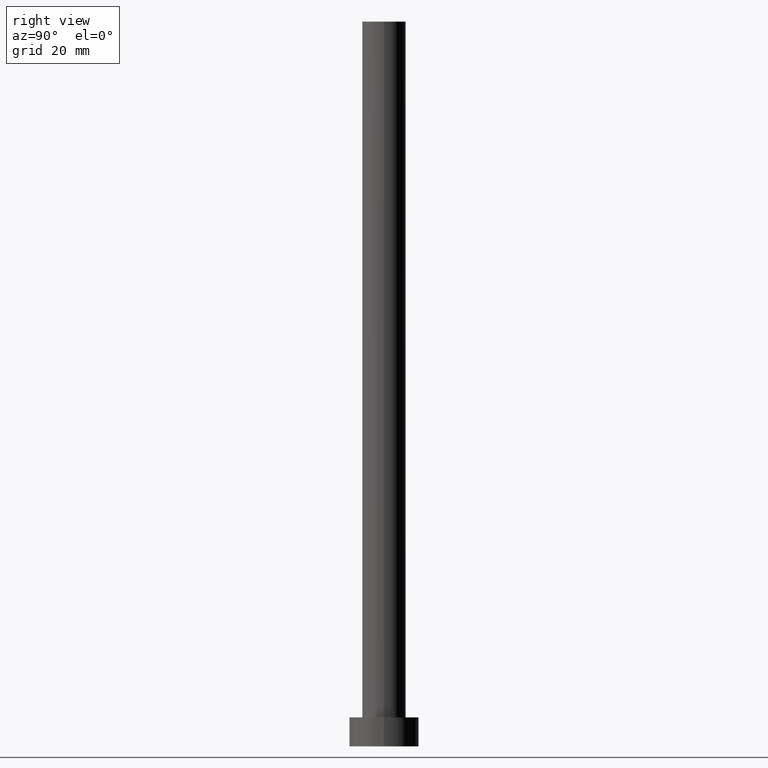
[diagram: clean part render]
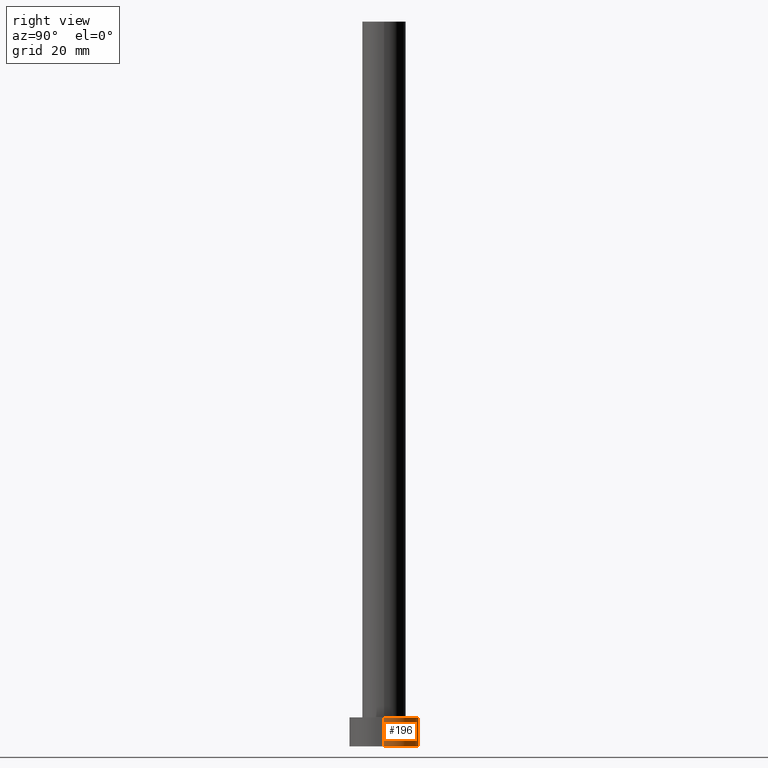
[diagram: same view with one face highlighted and labeled with its STEP entity id]
A machine part, right view. The second image highlights one B-rep face of the part: STEP entity #196.
In plain terms, the highlighted cylindrical surface (edge-blend (fillet) strip) has radius 6 mm, axis along (-0, -0, -1).
Its self-contained STEP definition (entity closure, byte-faithful):
#11 = CARTESIAN_POINT ( 'NONE',  ( 0.000000000000000000, 0.000000000000000000, 5.000000000000000000 ) ) ;
#13 = CARTESIAN_POINT ( 'NONE',  ( -6.000000000000000888, 0.000000000000000000, 5.000000000000000000 ) ) ;
#16 = CARTESIAN_POINT ( 'NONE',  ( -6.000000000000000888, 0.000000000000000000, 5.000000000000000000 ) ) ;
#19 = AXIS2_PLACEMENT_3D ( 'NONE', #157, #156, #122 ) ;
#33 = DIRECTION ( 'NONE',  ( -0.000000000000000000, -0.000000000000000000, -1.000000000000000000 ) ) ;
#34 = EDGE_CURVE ( 'NONE', #192, #238, #176, .T. ) ;
#46 = VERTEX_POINT ( 'NONE', #160 ) ;
#50 = CIRCLE ( 'NONE', #158, 6.000000000000000888 ) ;
#54 = EDGE_CURVE ( 'NONE', #46, #64, #50, .T. ) ;
#55 = ORIENTED_EDGE ( 'NONE', *, *, #34, .T. ) ;
#62 = CARTESIAN_POINT ( 'NONE',  ( -6.000000000000000888, 0.000000000000000000, 0.000000000000000000 ) ) ;
#64 = VERTEX_POINT ( 'NONE', #13 ) ;
#71 = AXIS2_PLACEMENT_3D ( 'NONE', #128, #230, #131 ) ;
#73 = ORIENTED_EDGE ( 'NONE', *, *, #54, .F. ) ;
#89 = ORIENTED_EDGE ( 'NONE', *, *, #226, .T. ) ;
#90 = EDGE_CURVE ( 'NONE', #64, #238, #225, .T. ) ;
#93 = DIRECTION ( 'NONE',  ( 0.000000000000000000, 0.000000000000000000, 1.000000000000000000 ) ) ;
#101 = CYLINDRICAL_SURFACE ( 'NONE', #71, 6.000000000000000888 ) ;
#104 = VECTOR ( 'NONE', #33, 1000.000000000000000 ) ;
#117 = CARTESIAN_POINT ( 'NONE',  ( 6.000000000000000888, 7.347880794884120722E-16, 0.000000000000000000 ) ) ;
#122 = DIRECTION ( 'NONE',  ( 1.000000000000000000, 0.000000000000000000, 0.000000000000000000 ) ) ;
#128 = CARTESIAN_POINT ( 'NONE',  ( 0.000000000000000000, 0.000000000000000000, 5.000000000000000000 ) ) ;
#131 = DIRECTION ( 'NONE',  ( -1.000000000000000000, 0.000000000000000000, 0.000000000000000000 ) ) ;
#137 = ORIENTED_EDGE ( 'NONE', *, *, #90, .F. ) ;
#142 = DIRECTION ( 'NONE',  ( -0.000000000000000000, -0.000000000000000000, -1.000000000000000000 ) ) ;
#151 = LINE ( 'NONE', #234, #104 ) ;
#153 = EDGE_LOOP ( 'NONE', ( #73, #89, #55, #137 ) ) ;
#156 = DIRECTION ( 'NONE',  ( 0.000000000000000000, 0.000000000000000000, 1.000000000000000000 ) ) ;
#157 = CARTESIAN_POINT ( 'NONE',  ( 0.000000000000000000, 0.000000000000000000, 0.000000000000000000 ) ) ;
#158 = AXIS2_PLACEMENT_3D ( 'NONE', #11, #93, #246 ) ;
#160 = CARTESIAN_POINT ( 'NONE',  ( 6.000000000000000888, 7.347880794884120722E-16, 5.000000000000000000 ) ) ;
#176 = CIRCLE ( 'NONE', #19, 6.000000000000000888 ) ;
#180 = VECTOR ( 'NONE', #142, 1000.000000000000000 ) ;
#192 = VERTEX_POINT ( 'NONE', #117 ) ;
#196 = ADVANCED_FACE ( 'NONE', ( #200 ), #101, .T. ) ;
#200 = FACE_OUTER_BOUND ( 'NONE', #153, .T. ) ;
#225 = LINE ( 'NONE', #16, #180 ) ;
#226 = EDGE_CURVE ( 'NONE', #46, #192, #151, .T. ) ;
#230 = DIRECTION ( 'NONE',  ( -0.000000000000000000, -0.000000000000000000, -1.000000000000000000 ) ) ;
#234 = CARTESIAN_POINT ( 'NONE',  ( 6.000000000000000888, 7.347880794884120722E-16, 5.000000000000000000 ) ) ;
#238 = VERTEX_POINT ( 'NONE', #62 ) ;
#246 = DIRECTION ( 'NONE',  ( 1.000000000000000000, 0.000000000000000000, 0.000000000000000000 ) ) ;